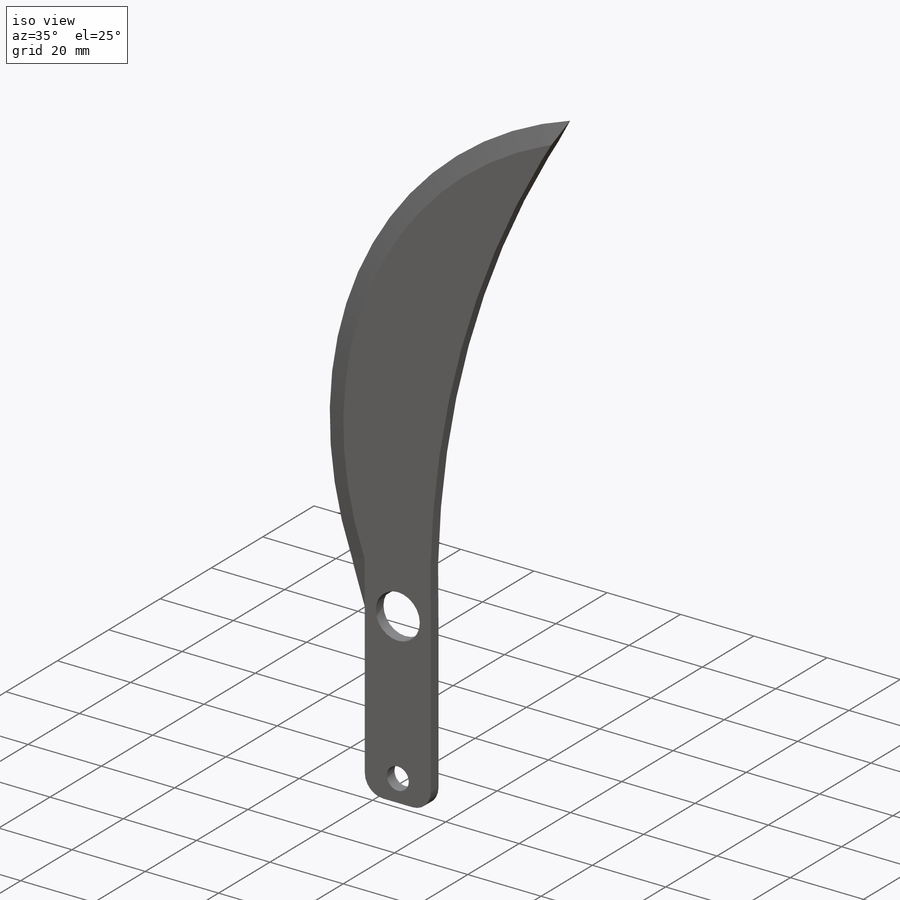
[diagram: iso view]
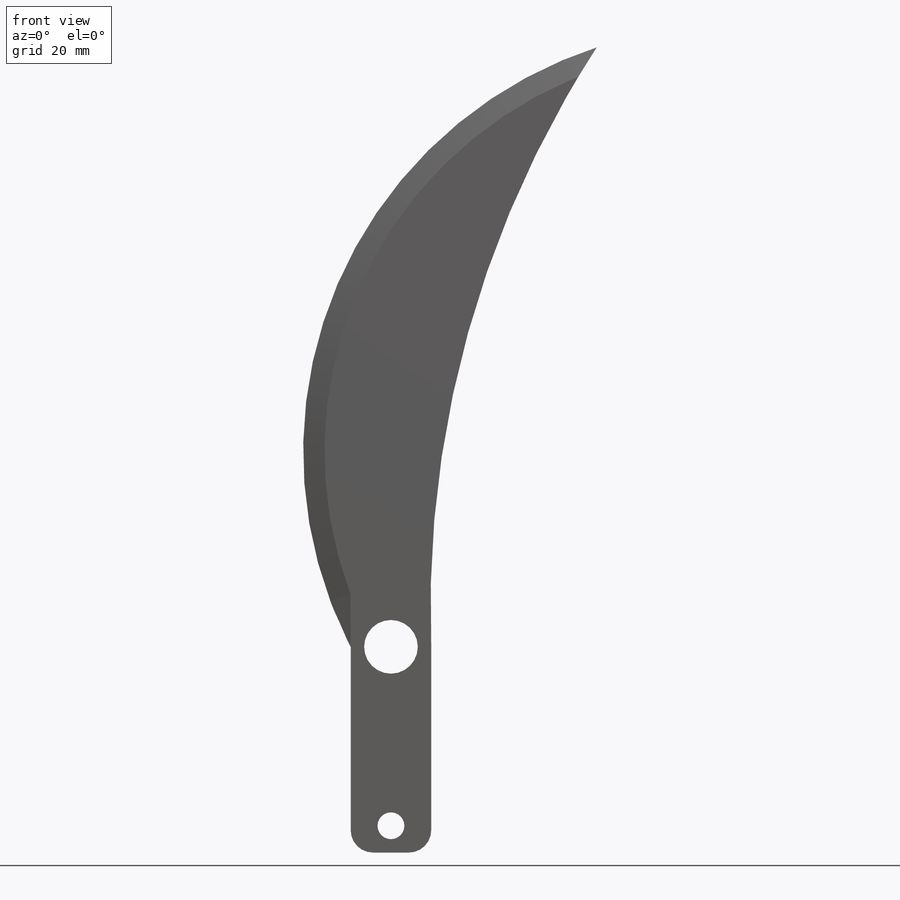
[diagram: front view]
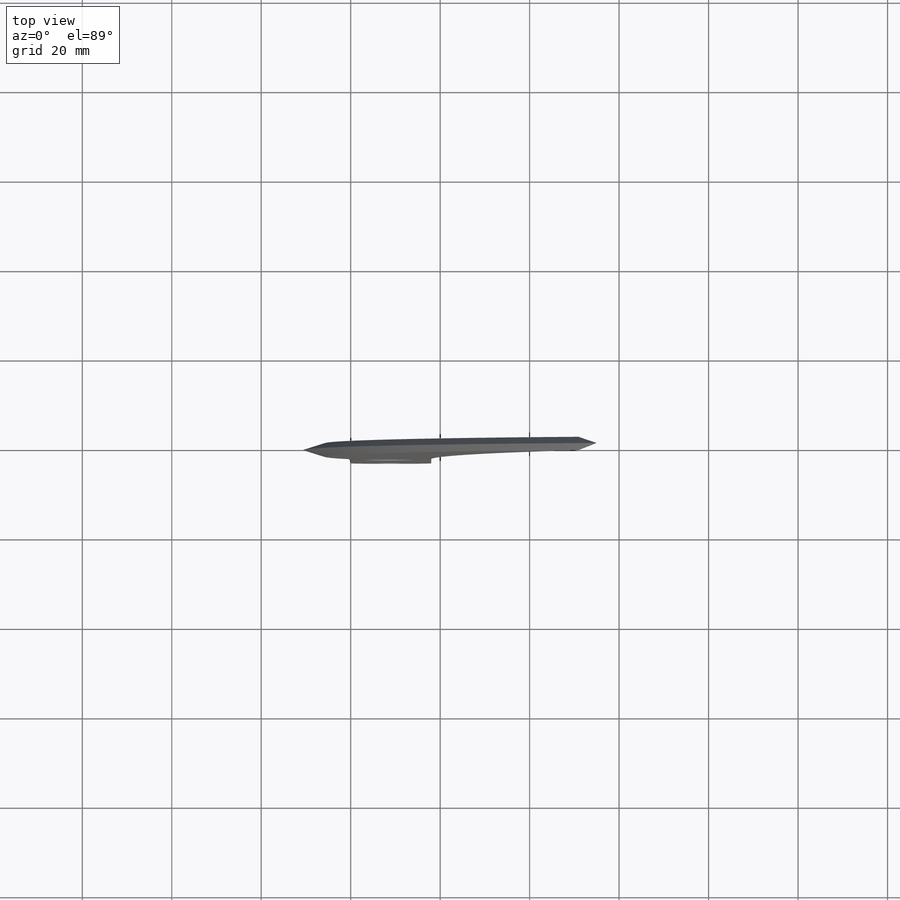
[diagram: top view]
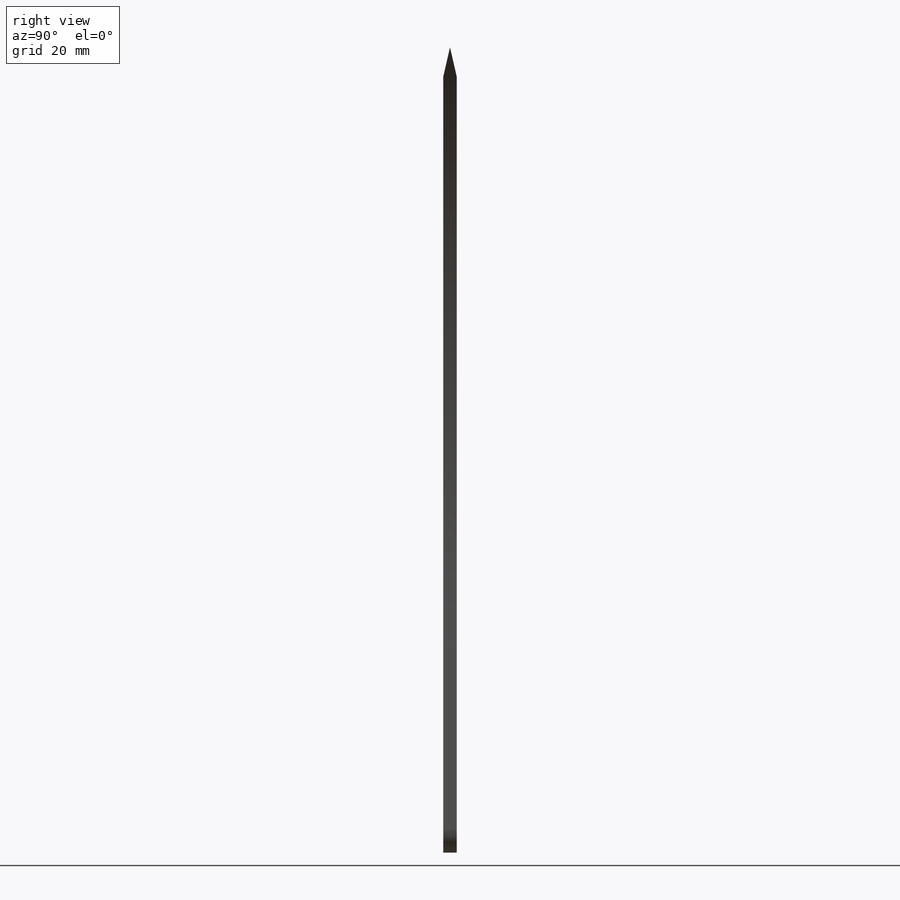
[diagram: right view]
SOLIDWORKS PART (.sldprt)
format: sldprt  version: not decoded by parser v0  size: 296,448 bytes
history: native  units: mm
features: sketch x11, plane x6, sweep x4, material x1, extrude x1, fillet x1 (+9 scaffold rows collapsed)
feature tree (33):
  scaffold x9  (default folders/planes/origin — collapsed)
  material  "普通碳钢"
  plane  "前视基准面"
  plane  "上视基准面"
  plane  "右视基准面"
  sketch  "草图1"  dims[c1.D1=~85.511596mm c1.D2=150.0mm c2.D1=~94.206548mm c2.D3=125.0mm c2.D4=110.0mm c2.D7=110.0mm c2.D6=150.0mm c2.D8=12.0mm c2.D9=5.5mm c2.D12=~42.082805mm c3.D1=~42.082805mm c3.D10=6.0mm c3.D4=230.0mm c3.D6=70.0mm c3.D9=220.0mm c3.D13=~7.915219mm c3.D3=95.0mm c4.D1=125.0mm c4.D2=15.0mm c4.D4=~17.648277mm c4.D5=~40.090264mm c4.D6=20.0mm c4.D7=~17.648277mm c5.D4=20.0mm c5.D6=20.0mm c6.D4=20.0mm c6.D6=~22.665102mm c6.D7=~29.426924mm c6.D8=~51.008693mm c6.D10=35.0mm c6.D11=5.0mm c6.D12=~17.949597mm c6.D2=90.0mm c7.D4=~120.427321mm c7.D5=18.0mm c7.D7=46.0mm c7.D9=~22.665102mm c7.D10=~61.484843mm c7.D11=40.0mm c7.D12=6.0mm c7.D6=~128.571118mm c8.D4=20.0mm c8.D9=~124.999072mm c8.D2=90.0mm c9.D9=~170.454545mm c9.D13=~131.358863mm c10.D13=14.5deg c10.D14=117.5mm c10.D15=~74.028472mm c11.D13=~117.061454mm c12.D13=~38.76248deg c12.D14=~118.238716mm c12.D9=180.0mm c13.D13=37.0mm]
  extrude  "凸台-拉伸1"  Depth=3mm
  fillet  "圆角1"  Radius=5mm
  plane  "基准面2"  Offset=10mm
  sketch  "草图9"  dims[D1=3.0mm]
  sketch  "草图3"  dims[D1=94.0mm]
  sketch  "草图5"  dims[c1.D1=5.0mm c1.D2=~18.923165mm c2.D2=30.0deg c2.D3=30.0mm c3.D2=~10.553586mm c4.D2=30.0deg]
  sweep  "切除-扫描3"
  sketch  "草图6"  dims[D1=~10.064174mm]
  sweep  "切除-扫描4"
  sketch  "草图5<4>"
  plane  "基准面3"
  sketch  "草图12"  dims[D1=~22.597608mm]
  plane  "基准面4"
  sketch  "草图13"  dims[c1.D1=~5.118569mm c2.D1=35.0deg c2.D2=~8.563854mm]
  sketch  "草图14"  dims[D1=~10.999535mm]
  sweep  "切除-扫描5"
  sketch  "草图15"  dims[D1=~4.988264mm]
  sketch  "草图16"  dims[D1=~11.822803mm]
  sweep  "切除-扫描6"
decode coverage: 12 of 17 modeling features carry decoded parameters
note: ~ marks probable driven/reference dimensions
summary: profile_refs inferred from adjacent sketches, not decoded
note: suppression state not decoded; provenance and decode notes live in map.json
